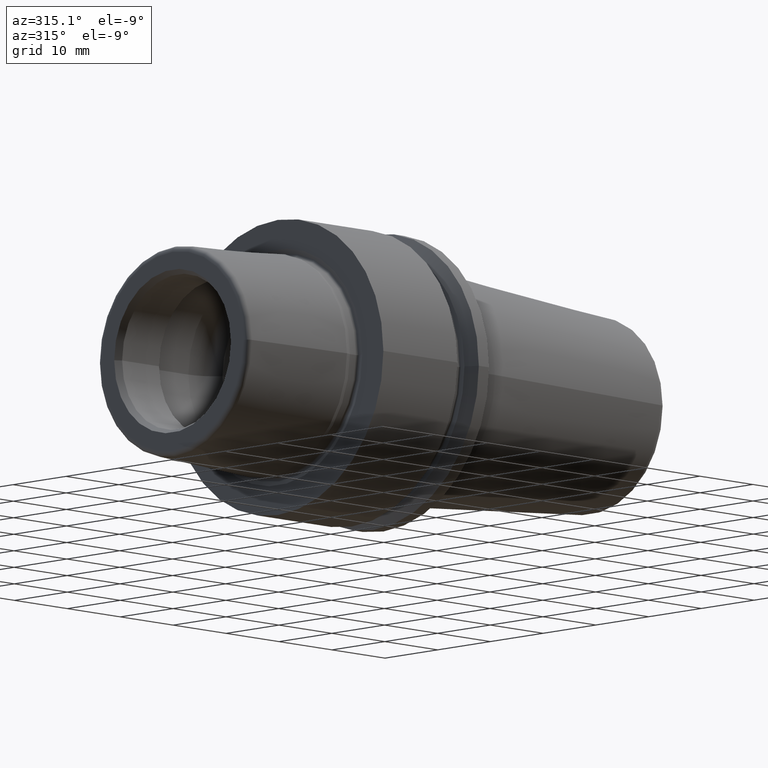
[diagram: clean part render]
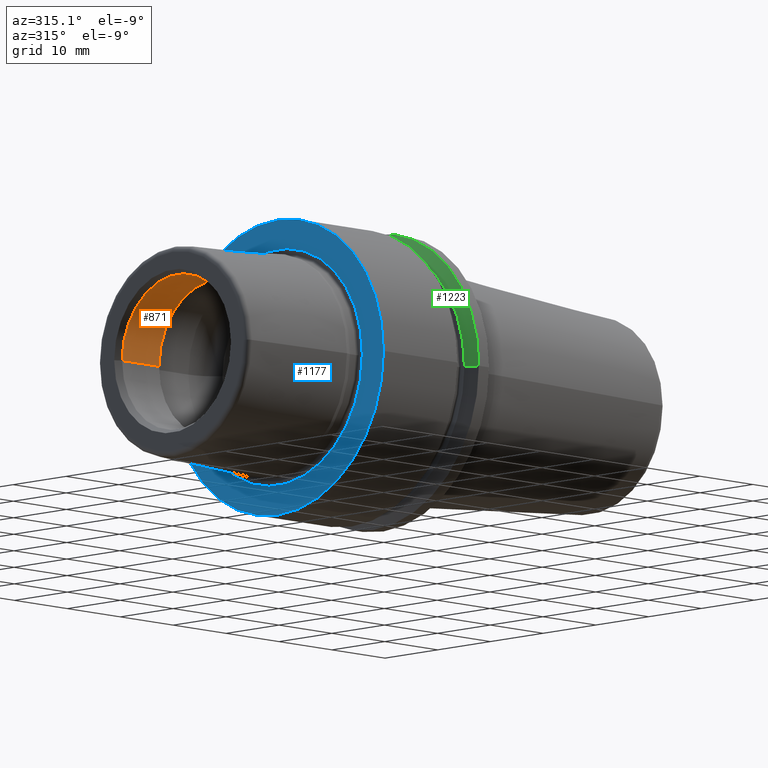
[diagram: same view with three faces highlighted in distinct colors, each labeled with its STEP entity id]
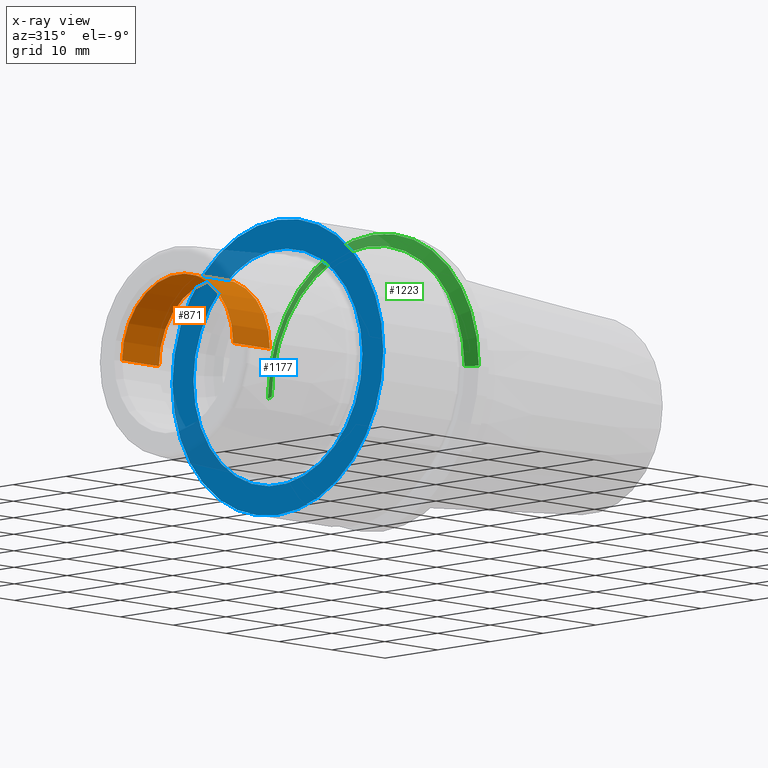
[diagram: x-ray of the same camera — body ghosted, the three highlighted faces saturated]
A machine part, auxiliary view with three faces highlighted in distinct colors.
The next image is the same camera in x-ray (body ghosted, the three faces saturated) — at least one of them is partly hidden behind the body in this view.
Their STEP definitions:

[orange] entity #871 — the highlighted cylindrical surface (partial cylindrical patch) has radius 10.521 mm, axis along (1, 0, 0).
#78=CARTESIAN_POINT('',(-1.895E1,0.E0,0.E0));
#79=DIRECTION('',(1.E0,0.E0,0.E0));
#80=DIRECTION('',(0.E0,1.E0,0.E0));
#81=AXIS2_PLACEMENT_3D('',#78,#79,#80);
#96=DIRECTION('',(-1.E0,0.E0,0.E0));
#97=VECTOR('',#96,6.964774086463E0);
#98=CARTESIAN_POINT('',(-1.198522591354E1,1.0521E1,0.E0));
#99=LINE('',#98,#97);
#105=DIRECTION('',(-1.E0,0.E0,0.E0));
#106=VECTOR('',#105,6.964774086463E0);
#107=CARTESIAN_POINT('',(-1.198522591354E1,-1.0521E1,0.E0));
#108=LINE('',#107,#106);
#109=CARTESIAN_POINT('',(-1.198522591354E1,0.E0,0.E0));
#110=DIRECTION('',(1.E0,0.E0,0.E0));
#111=DIRECTION('',(0.E0,1.E0,0.E0));
#112=AXIS2_PLACEMENT_3D('',#109,#110,#111);
#666=CARTESIAN_POINT('',(-1.198522591354E1,1.0521E1,0.E0));
#667=VERTEX_POINT('',#666);
#668=CARTESIAN_POINT('',(-1.895E1,1.0521E1,0.E0));
#669=VERTEX_POINT('',#668);
#678=CARTESIAN_POINT('',(-1.198522591354E1,-1.0521E1,0.E0));
#679=VERTEX_POINT('',#678);
#680=CARTESIAN_POINT('',(-1.895E1,-1.0521E1,0.E0));
#681=VERTEX_POINT('',#680);
#859=CARTESIAN_POINT('',(-2.12925E1,0.E0,0.E0));
#860=DIRECTION('',(1.E0,0.E0,0.E0));
#861=DIRECTION('',(0.E0,-1.E0,0.E0));
#862=AXIS2_PLACEMENT_3D('',#859,#860,#861);
#863=CYLINDRICAL_SURFACE('',#862,1.0521E1);
#864=ORIENTED_EDGE('',*,*,#849,.T.);
#865=ORIENTED_EDGE('',*,*,#826,.T.);
#866=ORIENTED_EDGE('',*,*,#853,.F.);
#868=ORIENTED_EDGE('',*,*,#867,.F.);
#869=EDGE_LOOP('',(#864,#865,#866,#868));
#870=FACE_OUTER_BOUND('',#869,.F.);
#871=ADVANCED_FACE('',(#870),#863,.F.);
#82=CIRCLE('',#81,1.0521E1);
#113=CIRCLE('',#112,1.0521E1);
#826=EDGE_CURVE('',#669,#681,#82,.T.);
#849=EDGE_CURVE('',#667,#669,#99,.T.);
#853=EDGE_CURVE('',#679,#681,#108,.T.);
#867=EDGE_CURVE('',#667,#679,#113,.T.);

[blue] entity #1177 — the highlighted planar face has unit normal (1, 0, 0).
#294=CARTESIAN_POINT('',(-1.065814103640E-14,0.E0,0.E0));
#295=DIRECTION('',(1.E0,0.E0,0.E0));
#296=DIRECTION('',(0.E0,1.E0,0.E0));
#297=AXIS2_PLACEMENT_3D('',#294,#295,#296);
#299=CARTESIAN_POINT('',(-1.065814103640E-14,0.E0,0.E0));
#300=DIRECTION('',(-1.E0,0.E0,0.E0));
#301=DIRECTION('',(0.E0,1.E0,0.E0));
#302=AXIS2_PLACEMENT_3D('',#299,#300,#301);
#304=CARTESIAN_POINT('',(0.E0,0.E0,0.E0));
#305=DIRECTION('',(-1.E0,0.E0,0.E0));
#306=DIRECTION('',(0.E0,-1.E0,0.E0));
#307=AXIS2_PLACEMENT_3D('',#304,#305,#306);
#309=CARTESIAN_POINT('',(0.E0,0.E0,0.E0));
#310=DIRECTION('',(-1.E0,0.E0,0.E0));
#311=DIRECTION('',(0.E0,1.E0,0.E0));
#312=AXIS2_PLACEMENT_3D('',#309,#310,#311);
#602=CARTESIAN_POINT('',(0.E0,-1.60037E1,0.E0));
#603=VERTEX_POINT('',#602);
#604=CARTESIAN_POINT('',(0.E0,1.60037E1,0.E0));
#605=VERTEX_POINT('',#604);
#654=CARTESIAN_POINT('',(-1.065814103640E-14,2.E1,0.E0));
#655=CARTESIAN_POINT('',(-1.065814103640E-14,-2.E1,0.E0));
#656=VERTEX_POINT('',#654);
#657=VERTEX_POINT('',#655);
#1162=CARTESIAN_POINT('',(0.E0,0.E0,0.E0));
#1163=DIRECTION('',(1.E0,0.E0,0.E0));
#1164=DIRECTION('',(0.E0,-1.E0,0.E0));
#1165=AXIS2_PLACEMENT_3D('',#1162,#1163,#1164);
#1166=PLANE('',#1165);
#1168=ORIENTED_EDGE('',*,*,#1167,.T.);
#1170=ORIENTED_EDGE('',*,*,#1169,.F.);
#1171=EDGE_LOOP('',(#1168,#1170));
#1172=FACE_OUTER_BOUND('',#1171,.F.);
#1173=ORIENTED_EDGE('',*,*,#1144,.T.);
#1174=ORIENTED_EDGE('',*,*,#1155,.T.);
#1175=EDGE_LOOP('',(#1173,#1174));
#1176=FACE_BOUND('',#1175,.F.);
#1177=ADVANCED_FACE('',(#1172,#1176),#1166,.F.);
#298=CIRCLE('',#297,2.E1);
#303=CIRCLE('',#302,2.E1);
#308=CIRCLE('',#307,1.60037E1);
#313=CIRCLE('',#312,1.60037E1);
#1144=EDGE_CURVE('',#603,#605,#308,.T.);
#1155=EDGE_CURVE('',#605,#603,#313,.T.);
#1167=EDGE_CURVE('',#656,#657,#298,.T.);
#1169=EDGE_CURVE('',#656,#657,#303,.T.);

[green] entity #1223 — the highlighted conical surface has half-angle 60 deg.
#314=CARTESIAN_POINT('',(1.803515969889E1,0.E0,0.E0));
#315=DIRECTION('',(1.E0,0.E0,0.E0));
#316=DIRECTION('',(0.E0,1.E0,0.E0));
#317=AXIS2_PLACEMENT_3D('',#314,#315,#316);
#329=CARTESIAN_POINT('',(1.70375E1,0.E0,0.E0));
#330=DIRECTION('',(1.E0,0.E0,0.E0));
#331=DIRECTION('',(0.E0,1.E0,0.E0));
#332=AXIS2_PLACEMENT_3D('',#329,#330,#331);
#334=DIRECTION('',(5.E-1,8.660254037844E-1,0.E0));
#335=VECTOR('',#334,1.995319397787E0);
#336=CARTESIAN_POINT('',(1.70375E1,1.827200271285E1,0.E0));
#337=LINE('',#336,#335);
#343=DIRECTION('',(5.E-1,-8.660254037844E-1,0.E0));
#344=VECTOR('',#343,1.995319397787E0);
#345=CARTESIAN_POINT('',(1.70375E1,-1.827200271285E1,0.E0));
#346=LINE('',#345,#344);
#638=CARTESIAN_POINT('',(1.70375E1,1.827200271285E1,0.E0));
#639=CARTESIAN_POINT('',(1.70375E1,-1.827200271285E1,0.E0));
#640=VERTEX_POINT('',#638);
#641=VERTEX_POINT('',#639);
#642=CARTESIAN_POINT('',(1.803515969889E1,2.E1,0.E0));
#643=VERTEX_POINT('',#642);
#646=CARTESIAN_POINT('',(1.803515969889E1,-2.E1,0.E0));
#647=VERTEX_POINT('',#646);
#1209=CARTESIAN_POINT('',(1.753632984945E1,0.E0,0.E0));
#1210=DIRECTION('',(1.E0,0.E0,0.E0));
#1211=DIRECTION('',(0.E0,-1.E0,0.E0));
#1212=AXIS2_PLACEMENT_3D('',#1209,#1210,#1211);
#1213=CONICAL_SURFACE('',#1212,1.913600135643E1,6.E1);
#1215=ORIENTED_EDGE('',*,*,#1214,.T.);
#1216=ORIENTED_EDGE('',*,*,#1183,.T.);
#1218=ORIENTED_EDGE('',*,*,#1217,.F.);
#1220=ORIENTED_EDGE('',*,*,#1219,.F.);
#1221=EDGE_LOOP('',(#1215,#1216,#1218,#1220));
#1222=FACE_OUTER_BOUND('',#1221,.F.);
#1223=ADVANCED_FACE('',(#1222),#1213,.T.);
#318=CIRCLE('',#317,2.E1);
#333=CIRCLE('',#332,1.827200271285E1);
#1183=EDGE_CURVE('',#643,#647,#318,.T.);
#1214=EDGE_CURVE('',#640,#643,#337,.T.);
#1217=EDGE_CURVE('',#641,#647,#346,.T.);
#1219=EDGE_CURVE('',#640,#641,#333,.T.);